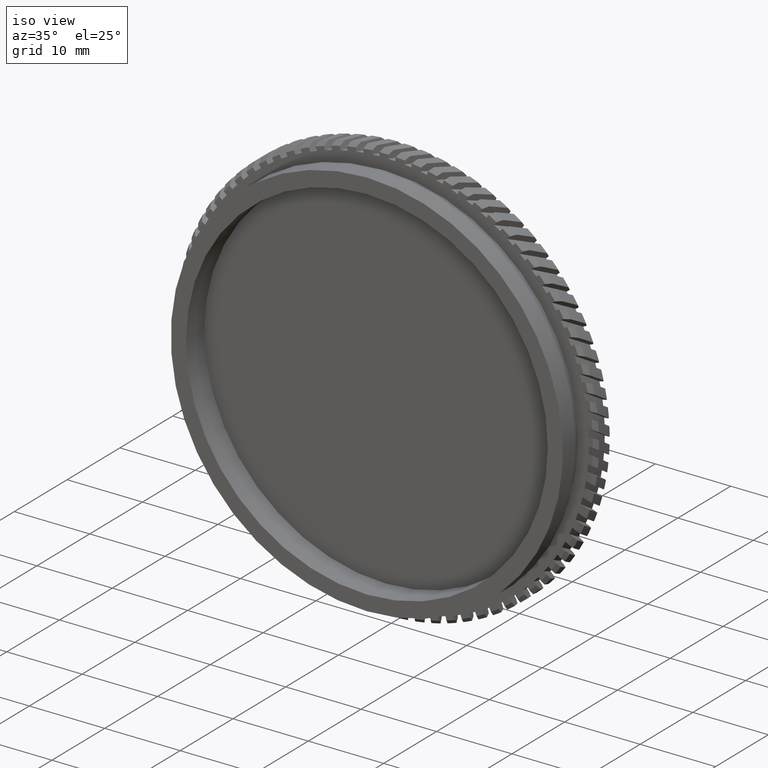
[diagram: clean part render]
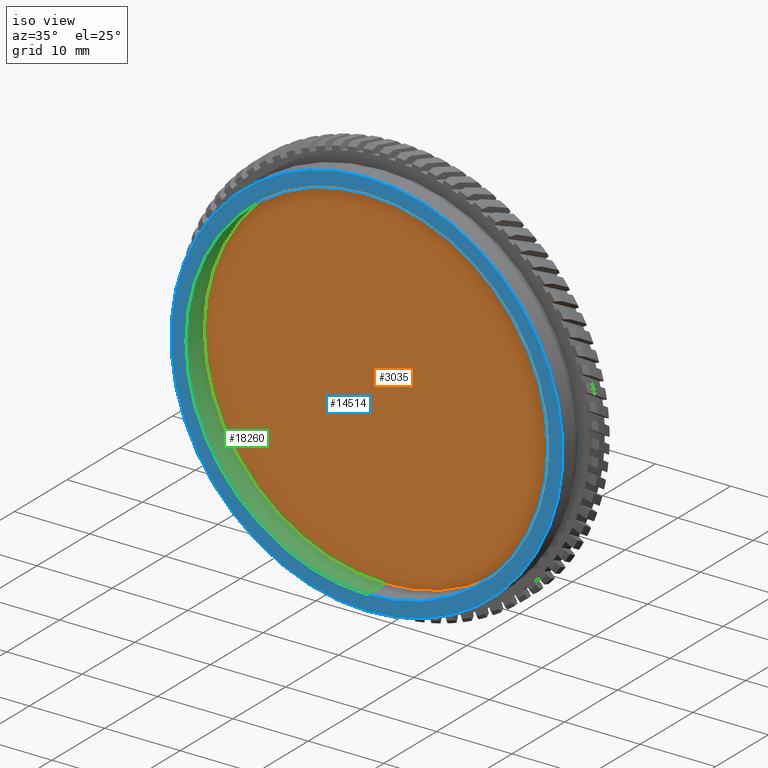
[diagram: same view with three faces highlighted in distinct colors, each labeled with its STEP entity id]
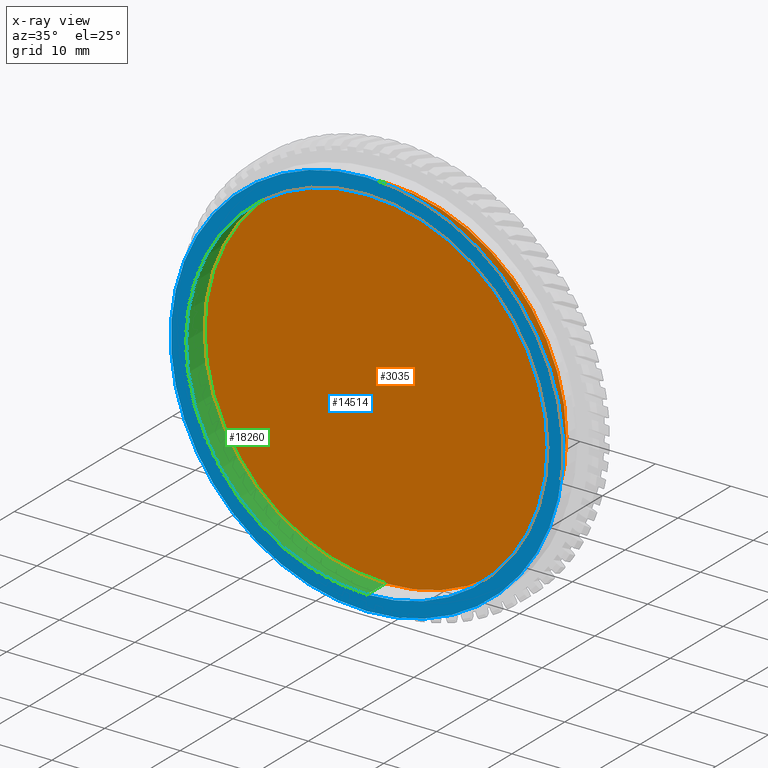
[diagram: x-ray of the same camera — body ghosted, the three highlighted faces saturated]
A machine part, iso view with three faces highlighted in distinct colors.
The next image is the same camera in x-ray (body ghosted, the three faces saturated) — at least one of them is partly hidden behind the body in this view.
Their STEP definitions:

[orange] entity #3035 — the highlighted planar face has unit normal (-0, 1, 0).
#356 = DIRECTION ( 'NONE',  ( -0.0000000000000000000, 1.000000000000000000, -0.0000000000000000000 ) ) ;
#767 = EDGE_LOOP ( 'NONE', ( #11164, #8313 ) ) ;
#2077 = PLANE ( 'NONE',  #19307 ) ;
#2794 = CARTESIAN_POINT ( 'NONE',  ( 2.939152317953648700E-015, 18.87125740523061500, -24.00000000000000700 ) ) ;
#3035 = ADVANCED_FACE ( 'NONE', ( #4369 ), #2077, .F. ) ;
#3498 = DIRECTION ( 'NONE',  ( 0.0000000000000000000, 0.0000000000000000000, 1.000000000000000000 ) ) ;
#3764 = AXIS2_PLACEMENT_3D ( 'NONE', #6688, #356, #8412 ) ;
#4369 = FACE_OUTER_BOUND ( 'NONE', #767, .T. ) ;
#6646 = CARTESIAN_POINT ( 'NONE',  ( 0.0000000000000000000, 18.87125740523061500, 0.0000000000000000000 ) ) ;
#6688 = CARTESIAN_POINT ( 'NONE',  ( 0.0000000000000000000, 18.87125740523061500, 0.0000000000000000000 ) ) ;
#7008 = DIRECTION ( 'NONE',  ( -0.0000000000000000000, 1.000000000000000000, 0.0000000000000000000 ) ) ;
#7068 = CIRCLE ( 'NONE', #3764, 24.00000000000000700 ) ;
#8249 = AXIS2_PLACEMENT_3D ( 'NONE', #6646, #18838, #3498 ) ;
#8313 = ORIENTED_EDGE ( 'NONE', *, *, #16961, .F. ) ;
#8412 = DIRECTION ( 'NONE',  ( 0.0000000000000000000, 0.0000000000000000000, 1.000000000000000000 ) ) ;
#10119 = DIRECTION ( 'NONE',  ( 0.0000000000000000000, 0.0000000000000000000, 1.000000000000000000 ) ) ;
#11164 = ORIENTED_EDGE ( 'NONE', *, *, #16125, .F. ) ;
#11582 = CARTESIAN_POINT ( 'NONE',  ( 0.0000000000000000000, 18.87125740523061500, 0.0000000000000000000 ) ) ;
#12098 = VERTEX_POINT ( 'NONE', #2794 ) ;
#13580 = VERTEX_POINT ( 'NONE', #14105 ) ;
#14105 = CARTESIAN_POINT ( 'NONE',  ( 0.0000000000000000000, 18.87125740523061500, 24.00000000000000700 ) ) ;
#16125 = EDGE_CURVE ( 'NONE', #13580, #12098, #7068, .T. ) ;
#16961 = EDGE_CURVE ( 'NONE', #12098, #13580, #18257, .T. ) ;
#18257 = CIRCLE ( 'NONE', #8249, 24.00000000000000700 ) ;
#18838 = DIRECTION ( 'NONE',  ( -0.0000000000000000000, 1.000000000000000000, -0.0000000000000000000 ) ) ;
#19307 = AXIS2_PLACEMENT_3D ( 'NONE', #11582, #7008, #10119 ) ;

[blue] entity #14514 — the highlighted planar face has unit normal (-0, 1, 0).
#229 = AXIS2_PLACEMENT_3D ( 'NONE', #639, #13062, #12995 ) ;
#639 = CARTESIAN_POINT ( 'NONE',  ( 0.0000000000000000000, 15.37125740523061900, 0.0000000000000000000 ) ) ;
#1221 = PLANE ( 'NONE',  #2601 ) ;
#1467 = EDGE_CURVE ( 'NONE', #5494, #18916, #18553, .T. ) ;
#2376 = ORIENTED_EDGE ( 'NONE', *, *, #5809, .T. ) ;
#2586 = CARTESIAN_POINT ( 'NONE',  ( 0.0000000000000000000, 15.37125740523061900, 0.0000000000000000000 ) ) ;
#2601 = AXIS2_PLACEMENT_3D ( 'NONE', #12150, #16907, #8877 ) ;
#3427 = EDGE_LOOP ( 'NONE', ( #6647, #15151 ) ) ;
#3482 = CARTESIAN_POINT ( 'NONE',  ( 0.0000000000000000000, 15.37125740523061900, 0.0000000000000000000 ) ) ;
#3698 = CARTESIAN_POINT ( 'NONE',  ( 2.939152317953648700E-015, 15.37125740523061900, -24.00000000000000700 ) ) ;
#3746 = DIRECTION ( 'NONE',  ( -0.0000000000000000000, 1.000000000000000000, -0.0000000000000000000 ) ) ;
#3822 = AXIS2_PLACEMENT_3D ( 'NONE', #3482, #3746, #13130 ) ;
#4147 = CIRCLE ( 'NONE', #15526, 26.00000000000000000 ) ;
#4707 = CARTESIAN_POINT ( 'NONE',  ( 0.0000000000000000000, 15.37125740523061900, 0.0000000000000000000 ) ) ;
#5111 = FACE_OUTER_BOUND ( 'NONE', #3427, .T. ) ;
#5398 = CARTESIAN_POINT ( 'NONE',  ( 0.0000000000000000000, 15.37125740523061900, 24.00000000000000700 ) ) ;
#5494 = VERTEX_POINT ( 'NONE', #3698 ) ;
#5702 = CIRCLE ( 'NONE', #8720, 26.00000000000000000 ) ;
#5809 = EDGE_CURVE ( 'NONE', #18916, #5494, #10197, .T. ) ;
#6647 = ORIENTED_EDGE ( 'NONE', *, *, #11765, .F. ) ;
#8720 = AXIS2_PLACEMENT_3D ( 'NONE', #4707, #12575, #18940 ) ;
#8877 = DIRECTION ( 'NONE',  ( 0.0000000000000000000, 0.0000000000000000000, 1.000000000000000000 ) ) ;
#10197 = CIRCLE ( 'NONE', #3822, 24.00000000000000700 ) ;
#10336 = DIRECTION ( 'NONE',  ( 0.0000000000000000000, 0.0000000000000000000, 1.000000000000000000 ) ) ;
#11334 = VERTEX_POINT ( 'NONE', #18473 ) ;
#11765 = EDGE_CURVE ( 'NONE', #11334, #14056, #5702, .T. ) ;
#12150 = CARTESIAN_POINT ( 'NONE',  ( 24.00000000000000700, 15.37125740523061700, 0.0000000000000000000 ) ) ;
#12459 = FACE_BOUND ( 'NONE', #18001, .T. ) ;
#12575 = DIRECTION ( 'NONE',  ( -0.0000000000000000000, 1.000000000000000000, -0.0000000000000000000 ) ) ;
#12995 = DIRECTION ( 'NONE',  ( 0.0000000000000000000, 0.0000000000000000000, 1.000000000000000000 ) ) ;
#13062 = DIRECTION ( 'NONE',  ( -0.0000000000000000000, 1.000000000000000000, -0.0000000000000000000 ) ) ;
#13130 = DIRECTION ( 'NONE',  ( 0.0000000000000000000, 0.0000000000000000000, 1.000000000000000000 ) ) ;
#13579 = ORIENTED_EDGE ( 'NONE', *, *, #1467, .T. ) ;
#14056 = VERTEX_POINT ( 'NONE', #16525 ) ;
#14514 = ADVANCED_FACE ( 'NONE', ( #5111, #12459 ), #1221, .F. ) ;
#15151 = ORIENTED_EDGE ( 'NONE', *, *, #15770, .F. ) ;
#15526 = AXIS2_PLACEMENT_3D ( 'NONE', #2586, #16774, #10336 ) ;
#15770 = EDGE_CURVE ( 'NONE', #14056, #11334, #4147, .T. ) ;
#16525 = CARTESIAN_POINT ( 'NONE',  ( 3.184081677783118200E-015, 15.37125740523061900, -26.00000000000000000 ) ) ;
#16774 = DIRECTION ( 'NONE',  ( -0.0000000000000000000, 1.000000000000000000, -0.0000000000000000000 ) ) ;
#16907 = DIRECTION ( 'NONE',  ( -0.0000000000000000000, 1.000000000000000000, 0.0000000000000000000 ) ) ;
#18001 = EDGE_LOOP ( 'NONE', ( #2376, #13579 ) ) ;
#18473 = CARTESIAN_POINT ( 'NONE',  ( 0.0000000000000000000, 15.37125740523061900, 26.00000000000000000 ) ) ;
#18553 = CIRCLE ( 'NONE', #229, 24.00000000000000700 ) ;
#18916 = VERTEX_POINT ( 'NONE', #5398 ) ;
#18940 = DIRECTION ( 'NONE',  ( 0.0000000000000000000, 0.0000000000000000000, 1.000000000000000000 ) ) ;

[green] entity #18260 — the highlighted cylindrical surface (partial cylindrical patch) has radius 24 mm, axis along (-0, 1, -0).
#229 = AXIS2_PLACEMENT_3D ( 'NONE', #639, #13062, #12995 ) ;
#639 = CARTESIAN_POINT ( 'NONE',  ( 0.0000000000000000000, 15.37125740523061900, 0.0000000000000000000 ) ) ;
#1172 = CARTESIAN_POINT ( 'NONE',  ( 2.939152317953648700E-015, 66.62876213592232900, -24.00000000000000700 ) ) ;
#1198 = VECTOR ( 'NONE', #2978, 1000.000000000000000 ) ;
#1467 = EDGE_CURVE ( 'NONE', #5494, #18916, #18553, .T. ) ;
#1472 = CARTESIAN_POINT ( 'NONE',  ( 0.0000000000000000000, 66.62876213592232900, 24.00000000000000700 ) ) ;
#2483 = ORIENTED_EDGE ( 'NONE', *, *, #1467, .F. ) ;
#2794 = CARTESIAN_POINT ( 'NONE',  ( 2.939152317953648700E-015, 18.87125740523061500, -24.00000000000000700 ) ) ;
#2978 = DIRECTION ( 'NONE',  ( -0.0000000000000000000, 1.000000000000000000, -0.0000000000000000000 ) ) ;
#3498 = DIRECTION ( 'NONE',  ( 0.0000000000000000000, 0.0000000000000000000, 1.000000000000000000 ) ) ;
#3698 = CARTESIAN_POINT ( 'NONE',  ( 2.939152317953648700E-015, 15.37125740523061900, -24.00000000000000700 ) ) ;
#4071 = CYLINDRICAL_SURFACE ( 'NONE', #9892, 24.00000000000000700 ) ;
#5398 = CARTESIAN_POINT ( 'NONE',  ( 0.0000000000000000000, 15.37125740523061900, 24.00000000000000700 ) ) ;
#5494 = VERTEX_POINT ( 'NONE', #3698 ) ;
#5996 = EDGE_CURVE ( 'NONE', #5494, #12098, #14800, .T. ) ;
#6218 = EDGE_LOOP ( 'NONE', ( #2483, #8209, #10355, #15022 ) ) ;
#6646 = CARTESIAN_POINT ( 'NONE',  ( 0.0000000000000000000, 18.87125740523061500, 0.0000000000000000000 ) ) ;
#8209 = ORIENTED_EDGE ( 'NONE', *, *, #5996, .T. ) ;
#8249 = AXIS2_PLACEMENT_3D ( 'NONE', #6646, #18838, #3498 ) ;
#9013 = CARTESIAN_POINT ( 'NONE',  ( 0.0000000000000000000, 66.62876213592232900, 0.0000000000000000000 ) ) ;
#9686 = VECTOR ( 'NONE', #15285, 1000.000000000000000 ) ;
#9892 = AXIS2_PLACEMENT_3D ( 'NONE', #9013, #14137, #12717 ) ;
#10355 = ORIENTED_EDGE ( 'NONE', *, *, #16961, .T. ) ;
#10518 = LINE ( 'NONE', #1472, #1198 ) ;
#12098 = VERTEX_POINT ( 'NONE', #2794 ) ;
#12717 = DIRECTION ( 'NONE',  ( 0.0000000000000000000, 0.0000000000000000000, 1.000000000000000000 ) ) ;
#12995 = DIRECTION ( 'NONE',  ( 0.0000000000000000000, 0.0000000000000000000, 1.000000000000000000 ) ) ;
#13062 = DIRECTION ( 'NONE',  ( -0.0000000000000000000, 1.000000000000000000, -0.0000000000000000000 ) ) ;
#13580 = VERTEX_POINT ( 'NONE', #14105 ) ;
#14105 = CARTESIAN_POINT ( 'NONE',  ( 0.0000000000000000000, 18.87125740523061500, 24.00000000000000700 ) ) ;
#14137 = DIRECTION ( 'NONE',  ( -0.0000000000000000000, 1.000000000000000000, -0.0000000000000000000 ) ) ;
#14800 = LINE ( 'NONE', #1172, #9686 ) ;
#15022 = ORIENTED_EDGE ( 'NONE', *, *, #16843, .F. ) ;
#15285 = DIRECTION ( 'NONE',  ( -0.0000000000000000000, 1.000000000000000000, -0.0000000000000000000 ) ) ;
#16042 = FACE_OUTER_BOUND ( 'NONE', #6218, .T. ) ;
#16843 = EDGE_CURVE ( 'NONE', #18916, #13580, #10518, .T. ) ;
#16961 = EDGE_CURVE ( 'NONE', #12098, #13580, #18257, .T. ) ;
#18257 = CIRCLE ( 'NONE', #8249, 24.00000000000000700 ) ;
#18260 = ADVANCED_FACE ( 'NONE', ( #16042 ), #4071, .F. ) ;
#18553 = CIRCLE ( 'NONE', #229, 24.00000000000000700 ) ;
#18838 = DIRECTION ( 'NONE',  ( -0.0000000000000000000, 1.000000000000000000, -0.0000000000000000000 ) ) ;
#18916 = VERTEX_POINT ( 'NONE', #5398 ) ;